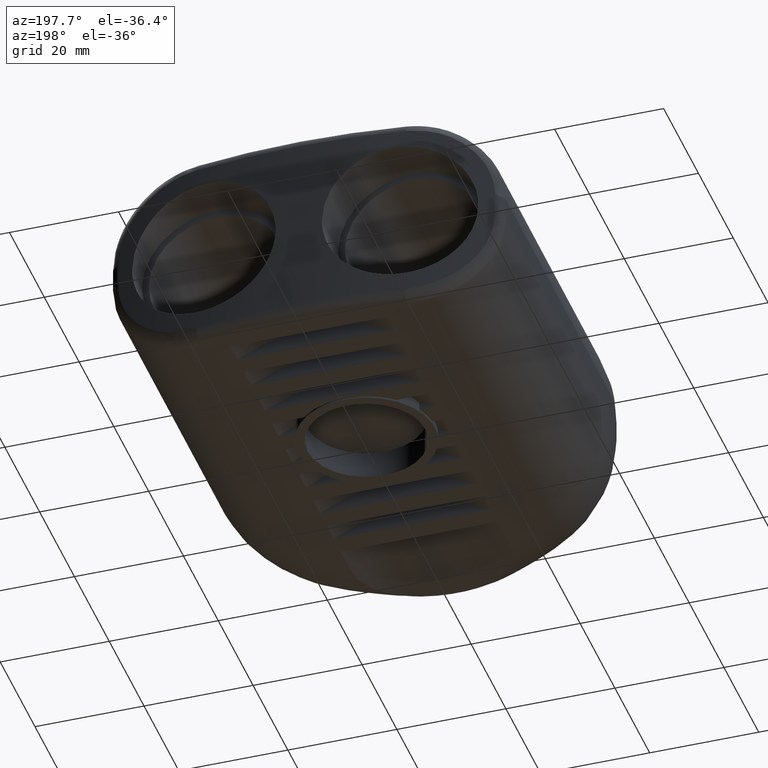
[diagram: clean part render]
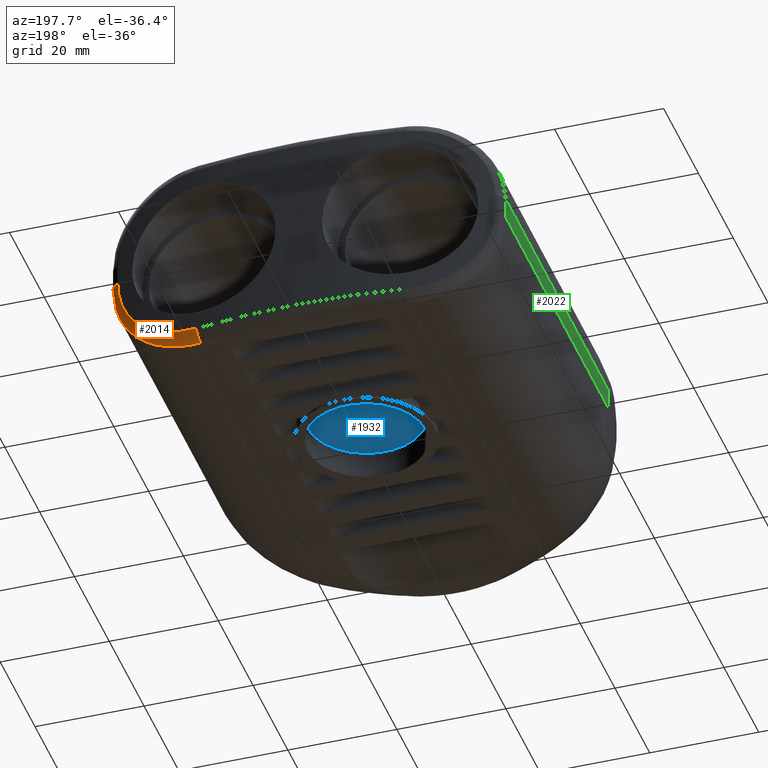
[diagram: same view with three faces highlighted in distinct colors, each labeled with its STEP entity id]
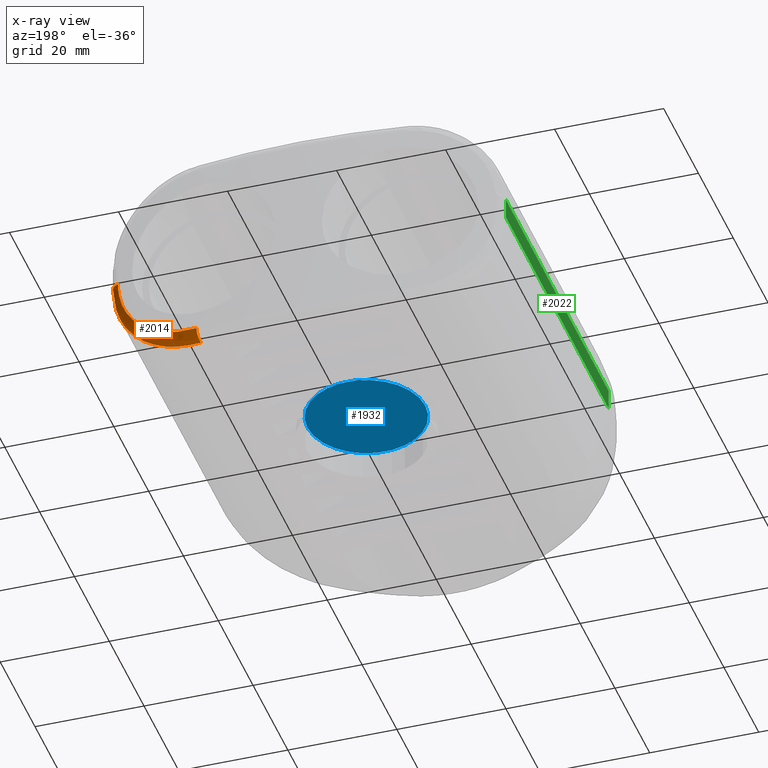
[diagram: x-ray of the same camera — body ghosted, the three highlighted faces saturated]
A machine part, auxiliary view with three faces highlighted in distinct colors.
The next image is the same camera in x-ray (body ghosted, the three faces saturated) — at least one of them is partly hidden behind the body in this view.
Their STEP definitions:

[orange] entity #2014 — the highlighted face is a freeform B-spline surface patch.
#15=B_SPLINE_SURFACE_WITH_KNOTS('',3,3,((#3768,#3769,#3770,#3771,#3772,
#3773,#3774),(#3775,#3776,#3777,#3778,#3779,#3780,#3781),(#3782,#3783,#3784,
#3785,#3786,#3787,#3788),(#3789,#3790,#3791,#3792,#3793,#3794,#3795),(#3796,
#3797,#3798,#3799,#3800,#3801,#3802)),.UNSPECIFIED.,.F.,.F.,.F.,(4,1,4),
(4,1,1,1,4),(0.,0.571428571428571,1.),(0.,0.688893278431783,1.03333991764767,
1.72223319607946,2.41112647451124),.UNSPECIFIED.);
#312=B_SPLINE_CURVE_WITH_KNOTS('',3,(#3806,#3807,#3808,#3809,#3810,#3811,
#3812),.UNSPECIFIED.,.F.,.F.,(4,1,1,1,4),(-2.41112647451124,-1.72223319607946,
-1.03333991764767,-0.688893278431783,0.),.UNSPECIFIED.);
#313=B_SPLINE_CURVE_WITH_KNOTS('',3,(#3815,#3816,#3817,#3818,#3819,#3820,
#3821),.UNSPECIFIED.,.F.,.F.,(4,1,1,1,4),(0.,0.688893278431783,1.03333991764767,
1.72223319607946,2.41112647451124),.UNSPECIFIED.);
#525=FACE_OUTER_BOUND('',#685,.T.);
#685=EDGE_LOOP('',(#1774,#1775,#1776,#1777));
#810=CIRCLE('',#2242,1.9);
#811=CIRCLE('',#2243,1.9);
#869=VERTEX_POINT('',#3224);
#999=VERTEX_POINT('',#3803);
#1000=VERTEX_POINT('',#3804);
#1001=VERTEX_POINT('',#3813);
#1264=EDGE_CURVE('',#999,#1000,#810,.T.);
#1265=EDGE_CURVE('',#1000,#869,#312,.T.);
#1266=EDGE_CURVE('',#869,#1001,#811,.T.);
#1267=EDGE_CURVE('',#1001,#999,#313,.T.);
#1774=ORIENTED_EDGE('',*,*,#1264,.T.);
#1775=ORIENTED_EDGE('',*,*,#1265,.T.);
#1776=ORIENTED_EDGE('',*,*,#1266,.T.);
#1777=ORIENTED_EDGE('',*,*,#1267,.T.);
#2014=ADVANCED_FACE('',(#525),#15,.F.);
#2242=AXIS2_PLACEMENT_3D('',#3805,#2796,#2797);
#2243=AXIS2_PLACEMENT_3D('',#3814,#2798,#2799);
#2796=DIRECTION('center_axis',(-1.46081976924362E-16,3.9228138980905E-17,
-1.));
#2797=DIRECTION('ref_axis',(0.259346965585189,0.96578421577584,0.));
#2798=DIRECTION('center_axis',(0.989614960456549,-0.143743626086808,6.93911567123605E-15));
#2799=DIRECTION('ref_axis',(7.01193489236941E-15,0.,-1.));
#3224=CARTESIAN_POINT('',(18.9,75.9345325165744,-19.));
#3768=CARTESIAN_POINT('Ctrl Pts',(19.1731128895649,77.8148009414418,-17.1));
#3769=CARTESIAN_POINT('Ctrl Pts',(21.4784145862076,77.4799510873666,-17.1));
#3770=CARTESIAN_POINT('Ctrl Pts',(24.9173416450841,76.8814654342908,-16.3221051122669));
#3771=CARTESIAN_POINT('Ctrl Pts',(29.8085691726306,75.850643389951,-13.3098874906731));
#3772=CARTESIAN_POINT('Ctrl Pts',(33.5131824363109,74.9340170928332,-8.7844000901204));
#3773=CARTESIAN_POINT('Ctrl Pts',(34.5927592346119,74.6361587265188,-4.19631092810594));
#3774=CARTESIAN_POINT('Ctrl Pts',(34.5927592346119,74.6361587265188,-1.9));
#3775=CARTESIAN_POINT('Ctrl Pts',(19.1731128895649,77.8148009414418,-17.6684786706496));
#3776=CARTESIAN_POINT('Ctrl Pts',(21.562079986421,77.4674696763976,-17.660527947419));
#3777=CARTESIAN_POINT('Ctrl Pts',(25.1168068356633,76.8456830993201,-16.838541858846));
#3778=CARTESIAN_POINT('Ctrl Pts',(30.1518499441335,75.7728543153891,-13.6975277467062));
#3779=CARTESIAN_POINT('Ctrl Pts',(33.9477962677524,74.8213911180575,-9.00646454153996));
#3780=CARTESIAN_POINT('Ctrl Pts',(35.0500912976183,74.5133490130568,-4.2705430368036));
#3781=CARTESIAN_POINT('Ctrl Pts',(35.0500912976183,74.5133490130568,-1.9));
#3782=CARTESIAN_POINT('Ctrl Pts',(19.10455171214,77.3427858077395,-18.6527162403361));
#3783=CARTESIAN_POINT('Ctrl Pts',(21.6307839020582,76.9899083012969,-18.6321132990726));
#3784=CARTESIAN_POINT('Ctrl Pts',(25.3802226468868,76.3554108170353,-17.7335888557541));
#3785=CARTESIAN_POINT('Ctrl Pts',(30.660627590978,75.264644759205,-14.3719961152394));
#3786=CARTESIAN_POINT('Ctrl Pts',(34.6184545460804,74.2984179942079,-9.39369034876371));
#3787=CARTESIAN_POINT('Ctrl Pts',(35.7620855062806,73.9859013119052,-4.3992832348418));
#3788=CARTESIAN_POINT('Ctrl Pts',(35.7620855062806,73.9859013119052,-1.9));
#3789=CARTESIAN_POINT('Ctrl Pts',(18.9612863891041,76.3564637644558,-19.));
#3790=CARTESIAN_POINT('Ctrl Pts',(21.5245471779807,76.0196052539247,-18.9907567891478));
#3791=CARTESIAN_POINT('Ctrl Pts',(25.339667207966,75.4162821500855,-18.0975184708899));
#3792=CARTESIAN_POINT('Ctrl Pts',(30.743561667997,74.377917561312,-14.6893069990885));
#3793=CARTESIAN_POINT('Ctrl Pts',(34.8173947833236,73.4556184267499,-9.60193499892501));
#3794=CARTESIAN_POINT('Ctrl Pts',(36.,73.1563195273076,-4.46904727865104));
#3795=CARTESIAN_POINT('Ctrl Pts',(36.,73.1563195273076,-1.9));
#3796=CARTESIAN_POINT('Ctrl Pts',(18.9,75.9345325165744,-19.));
#3797=CARTESIAN_POINT('Ctrl Pts',(21.4565216043527,75.6044524571456,-19.));
#3798=CARTESIAN_POINT('Ctrl Pts',(25.2702052252924,75.014491979247,-18.1248682513003));
#3799=CARTESIAN_POINT('Ctrl Pts',(30.6944535413318,73.9983535592502,-14.7361234270073));
#3800=CARTESIAN_POINT('Ctrl Pts',(34.8027764815192,73.0947842163213,-9.64495010138546));
#3801=CARTESIAN_POINT('Ctrl Pts',(36.,72.8011687165447,-4.48334979411912));
#3802=CARTESIAN_POINT('Ctrl Pts',(36.,72.8011687165447,-1.9));
#3803=CARTESIAN_POINT('',(34.5927592346119,74.6361587265188,-1.9));
#3804=CARTESIAN_POINT('',(36.,72.8011687165447,-1.9));
#3805=CARTESIAN_POINT('Origin',(34.1,72.8011687165447,-1.9));
#3806=CARTESIAN_POINT('Ctrl Pts',(36.,72.8011687165447,-1.9));
#3807=CARTESIAN_POINT('Ctrl Pts',(36.,72.8011687165447,-4.48334979411912));
#3808=CARTESIAN_POINT('Ctrl Pts',(34.8027764815192,73.0947842163213,-9.64495010138546));
#3809=CARTESIAN_POINT('Ctrl Pts',(30.6944535413318,73.9983535592502,-14.7361234270073));
#3810=CARTESIAN_POINT('Ctrl Pts',(25.2702052252924,75.014491979247,-18.1248682513003));
#3811=CARTESIAN_POINT('Ctrl Pts',(21.4565216043527,75.6044524571456,-19.));
#3812=CARTESIAN_POINT('Ctrl Pts',(18.9,75.9345325165744,-19.));
#3813=CARTESIAN_POINT('',(19.1731128895649,77.8148009414418,-17.1));
#3814=CARTESIAN_POINT('Origin',(18.9,75.9345325165744,-17.1));
#3815=CARTESIAN_POINT('Ctrl Pts',(19.1731128895649,77.8148009414418,-17.1));
#3816=CARTESIAN_POINT('Ctrl Pts',(21.4784145862076,77.4799510873666,-17.1));
#3817=CARTESIAN_POINT('Ctrl Pts',(24.9173416450841,76.8814654342908,-16.3221051122669));
#3818=CARTESIAN_POINT('Ctrl Pts',(29.8085691726306,75.850643389951,-13.3098874906731));
#3819=CARTESIAN_POINT('Ctrl Pts',(33.5131824363109,74.9340170928332,-8.7844000901204));
#3820=CARTESIAN_POINT('Ctrl Pts',(34.5927592346119,74.6361587265188,-4.19631092810594));
#3821=CARTESIAN_POINT('Ctrl Pts',(34.5927592346119,74.6361587265188,-1.9));

[blue] entity #1932 — the highlighted planar face has unit normal (0, 0, 1).
#330=PLANE('',#2097);
#443=FACE_OUTER_BOUND('',#593,.T.);
#593=EDGE_LOOP('',(#1423));
#744=CIRCLE('',#2096,10.8);
#915=VERTEX_POINT('',#3319);
#1113=EDGE_CURVE('',#915,#915,#744,.T.);
#1423=ORIENTED_EDGE('',*,*,#1113,.T.);
#1932=ADVANCED_FACE('',(#443),#330,.F.);
#2096=AXIS2_PLACEMENT_3D('',#3320,#2437,#2438);
#2097=AXIS2_PLACEMENT_3D('',#3321,#2439,#2440);
#2437=DIRECTION('center_axis',(0.,0.,-1.));
#2438=DIRECTION('ref_axis',(-1.,0.,0.));
#2439=DIRECTION('center_axis',(0.,0.,1.));
#2440=DIRECTION('ref_axis',(1.,0.,0.));
#3319=CARTESIAN_POINT('',(10.8,40.2499208195269,-14.25));
#3320=CARTESIAN_POINT('Origin',(0.,40.2499208195269,-14.25));
#3321=CARTESIAN_POINT('Origin',(-4.52879639276705E-16,40.2499208195269,
-14.25));

[green] entity #2022 — the highlighted planar face has unit normal (-1, 0, 0).
#20=LINE('',#3097,#142);
#133=LINE('',#3939,#255);
#135=LINE('',#3995,#257);
#136=LINE('',#3996,#258);
#142=VECTOR('',#2329,3.8);
#255=VECTOR('',#2820,3.8);
#257=VECTOR('',#2830,58.9476311031944);
#258=VECTOR('',#2831,58.9476311031944);
#380=PLANE('',#2256);
#533=FACE_OUTER_BOUND('',#693,.T.);
#693=EDGE_LOOP('',(#1806,#1807,#1808,#1809));
#847=VERTEX_POINT('',#3082);
#851=VERTEX_POINT('',#3095);
#1007=VERTEX_POINT('',#3919);
#1009=VERTEX_POINT('',#3937);
#1046=EDGE_CURVE('',#851,#847,#20,.T.);
#1280=EDGE_CURVE('',#1009,#1007,#133,.T.);
#1286=EDGE_CURVE('',#847,#1009,#135,.T.);
#1287=EDGE_CURVE('',#1007,#851,#136,.T.);
#1806=ORIENTED_EDGE('',*,*,#1280,.F.);
#1807=ORIENTED_EDGE('',*,*,#1286,.F.);
#1808=ORIENTED_EDGE('',*,*,#1046,.F.);
#1809=ORIENTED_EDGE('',*,*,#1287,.F.);
#2022=ADVANCED_FACE('',(#533),#380,.T.);
#2256=AXIS2_PLACEMENT_3D('',#3994,#2828,#2829);
#2329=DIRECTION('',(0.,0.,-1.));
#2820=DIRECTION('',(0.,0.,1.));
#2828=DIRECTION('center_axis',(-1.,0.,0.));
#2829=DIRECTION('ref_axis',(0.,-1.,0.));
#2830=DIRECTION('',(0.,1.,0.));
#2831=DIRECTION('',(0.,-1.,0.));
#3082=CARTESIAN_POINT('',(-36.,13.8535376133503,-1.9));
#3095=CARTESIAN_POINT('',(-36.,13.8535376133503,1.9));
#3097=CARTESIAN_POINT('',(-36.,13.8535376133503,0.));
#3919=CARTESIAN_POINT('',(-36.,72.8011687165447,1.9));
#3937=CARTESIAN_POINT('',(-36.,72.8011687165447,-1.9));
#3939=CARTESIAN_POINT('',(-36.,72.8011687165447,0.));
#3994=CARTESIAN_POINT('Origin',(-36.,74.25,0.));
#3995=CARTESIAN_POINT('',(-36.,53.8125717591919,-1.9));
#3996=CARTESIAN_POINT('',(-36.,53.8125717591919,1.9));